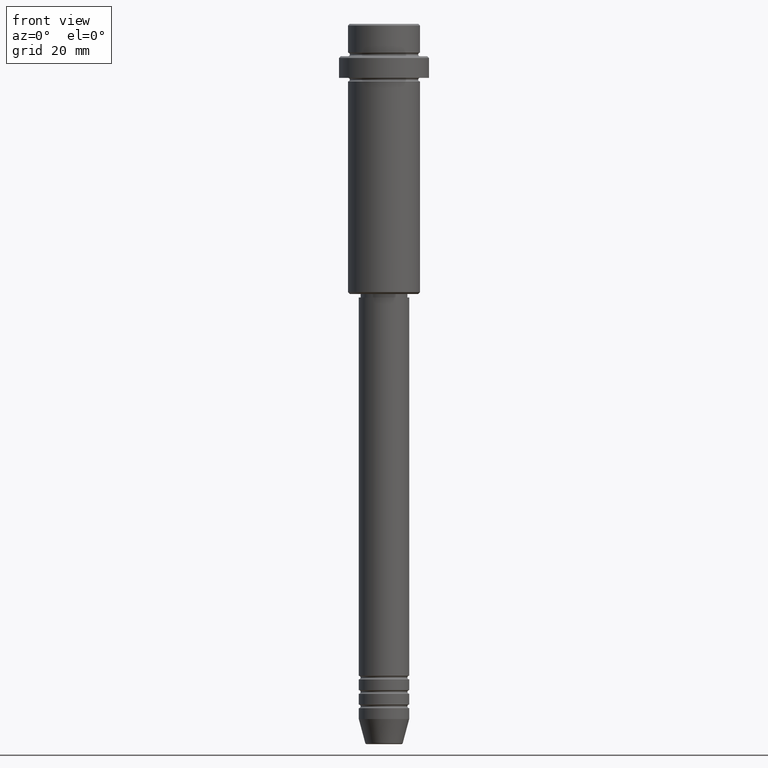
[diagram: clean part render]
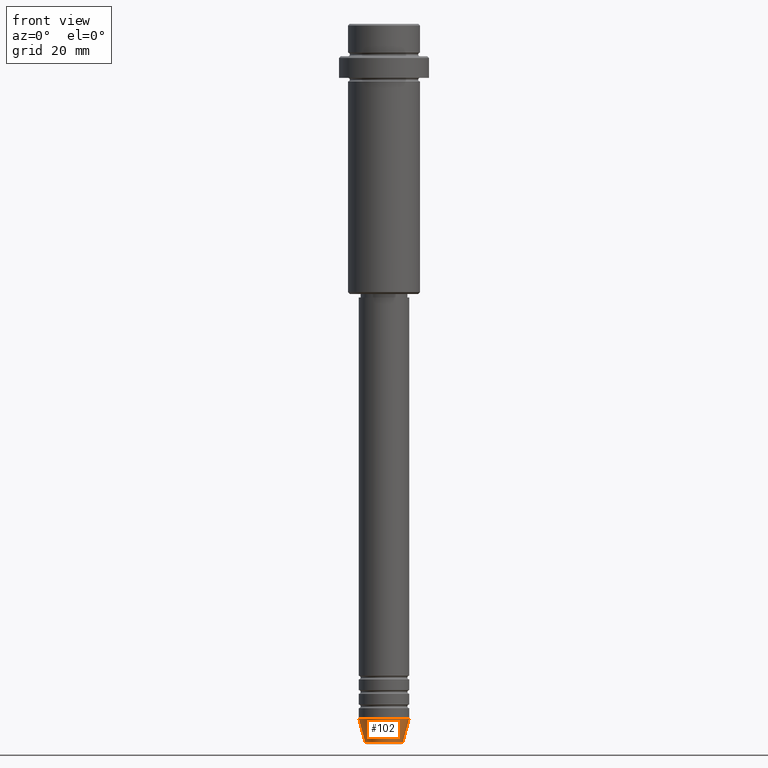
[diagram: same view with one face highlighted and labeled with its STEP entity id]
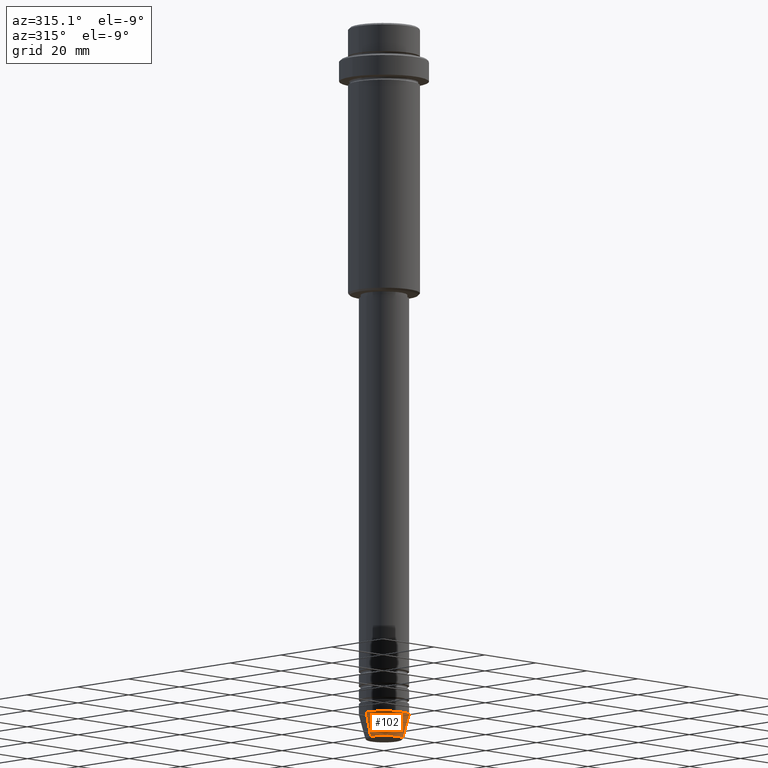
[diagram: same view with one face highlighted and labeled with its STEP entity id]
A machine part, front view. The second image highlights one B-rep face of the part: STEP entity #102.
A second angle (auxiliary view) of the same face is appended — the face is thin or edge-on in the first view.
In plain terms, the highlighted conical surface has half-angle 15 deg.
Its self-contained STEP definition (entity closure, byte-faithful):
#50 = ORIENTED_EDGE ( 'NONE', *, *, #545, .F. ) ;
#62 = CIRCLE ( 'NONE', #411, 7.000000000000000000 ) ;
#102 = ADVANCED_FACE ( 'NONE', ( #1233 ), #926, .T. ) ;
#115 = VECTOR ( 'NONE', #449, 1000.000000000000000 ) ;
#156 = DIRECTION ( 'NONE',  ( 1.000000000000000000, 0.000000000000000000, 0.000000000000000000 ) ) ;
#175 = CIRCLE ( 'NONE', #1358, 5.223655072137191269 ) ;
#236 = ORIENTED_EDGE ( 'NONE', *, *, #1288, .F. ) ;
#275 = ORIENTED_EDGE ( 'NONE', *, *, #1164, .T. ) ;
#284 = CARTESIAN_POINT ( 'NONE',  ( 0.000000000000000000, 0.000000000000000000, -199.6294095225512706 ) ) ;
#291 = DIRECTION ( 'NONE',  ( 1.000000000000000000, 0.000000000000000000, 0.000000000000000000 ) ) ;
#348 = VERTEX_POINT ( 'NONE', #1188 ) ;
#366 = ORIENTED_EDGE ( 'NONE', *, *, #860, .T. ) ;
#371 = CARTESIAN_POINT ( 'NONE',  ( 0.000000000000000000, 0.000000000000000000, -193.0000000000000000 ) ) ;
#411 = AXIS2_PLACEMENT_3D ( 'NONE', #371, #1236, #1327 ) ;
#449 = DIRECTION ( 'NONE',  ( -0.2588190451025214056, 3.169619151431772953E-17, 0.9659258262890680902 ) ) ;
#485 = DIRECTION ( 'NONE',  ( -0.000000000000000000, -0.000000000000000000, 1.000000000000000000 ) ) ;
#538 = VERTEX_POINT ( 'NONE', #911 ) ;
#545 = EDGE_CURVE ( 'NONE', #348, #792, #62, .T. ) ;
#624 = VECTOR ( 'NONE', #1123, 1000.000000000000000 ) ;
#658 = CARTESIAN_POINT ( 'NONE',  ( 7.000000000000000000, 0.000000000000000000, -193.0000000000000000 ) ) ;
#696 = CARTESIAN_POINT ( 'NONE',  ( 5.223655072137191269, 0.000000000000000000, -199.6294095225512706 ) ) ;
#792 = VERTEX_POINT ( 'NONE', #658 ) ;
#860 = EDGE_CURVE ( 'NONE', #933, #792, #977, .T. ) ;
#873 = CARTESIAN_POINT ( 'NONE',  ( 7.000000000000000000, 0.000000000000000000, -193.0000000000000000 ) ) ;
#901 = AXIS2_PLACEMENT_3D ( 'NONE', #1128, #485, #156 ) ;
#911 = CARTESIAN_POINT ( 'NONE',  ( -5.223655072137191269, 7.484830028987061160E-16, -199.6294095225512706 ) ) ;
#926 = CONICAL_SURFACE ( 'NONE', #901, 7.000000000000000000, 0.2617993877991501295 ) ;
#933 = VERTEX_POINT ( 'NONE', #696 ) ;
#977 = LINE ( 'NONE', #873, #624 ) ;
#998 = LINE ( 'NONE', #1081, #115 ) ;
#1081 = CARTESIAN_POINT ( 'NONE',  ( -7.000000000000000000, 8.572527594031473190E-16, -193.0000000000000000 ) ) ;
#1123 = DIRECTION ( 'NONE',  ( 0.2588190451025214056, 0.000000000000000000, 0.9659258262890680902 ) ) ;
#1128 = CARTESIAN_POINT ( 'NONE',  ( 0.000000000000000000, 0.000000000000000000, -193.0000000000000000 ) ) ;
#1153 = DIRECTION ( 'NONE',  ( -0.000000000000000000, -0.000000000000000000, 1.000000000000000000 ) ) ;
#1164 = EDGE_CURVE ( 'NONE', #538, #933, #175, .T. ) ;
#1188 = CARTESIAN_POINT ( 'NONE',  ( -7.000000000000000000, 8.572527594031473190E-16, -193.0000000000000000 ) ) ;
#1196 = EDGE_LOOP ( 'NONE', ( #236, #275, #366, #50 ) ) ;
#1233 = FACE_OUTER_BOUND ( 'NONE', #1196, .T. ) ;
#1236 = DIRECTION ( 'NONE',  ( -0.000000000000000000, -0.000000000000000000, 1.000000000000000000 ) ) ;
#1288 = EDGE_CURVE ( 'NONE', #538, #348, #998, .T. ) ;
#1327 = DIRECTION ( 'NONE',  ( 1.000000000000000000, 0.000000000000000000, 0.000000000000000000 ) ) ;
#1358 = AXIS2_PLACEMENT_3D ( 'NONE', #284, #1153, #291 ) ;